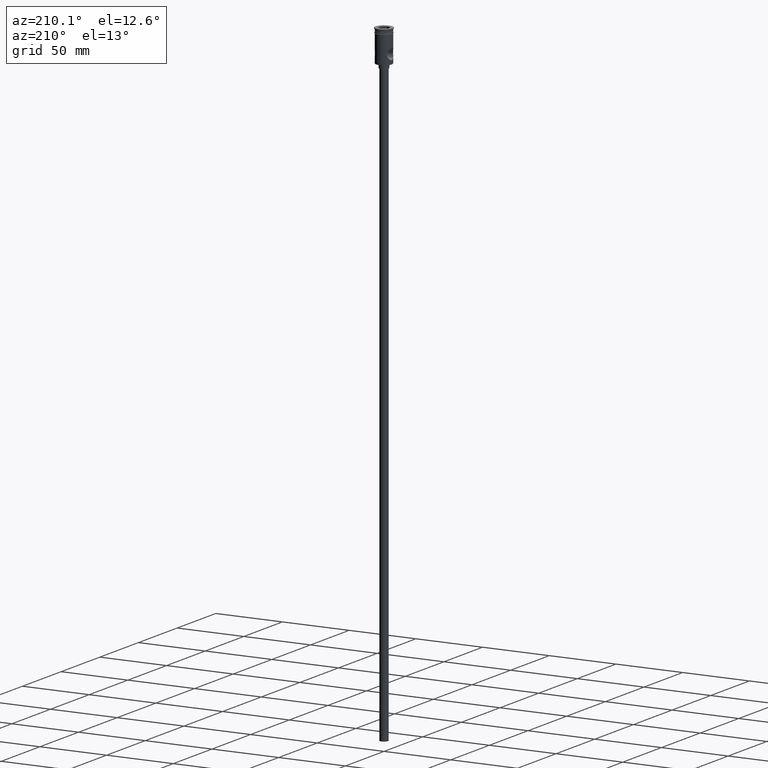
[diagram: clean part render]
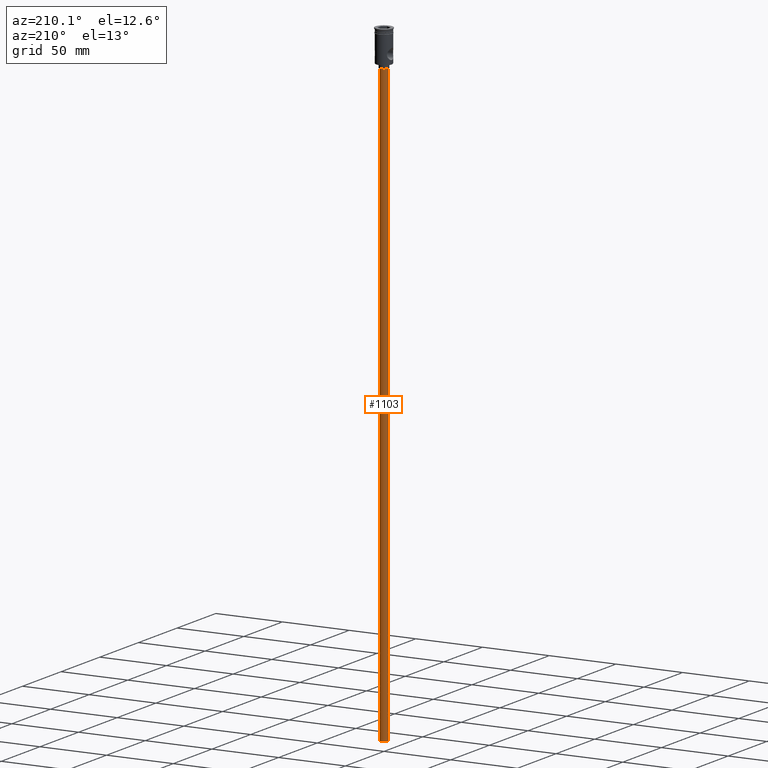
[diagram: same view with one face highlighted and labeled with its STEP entity id]
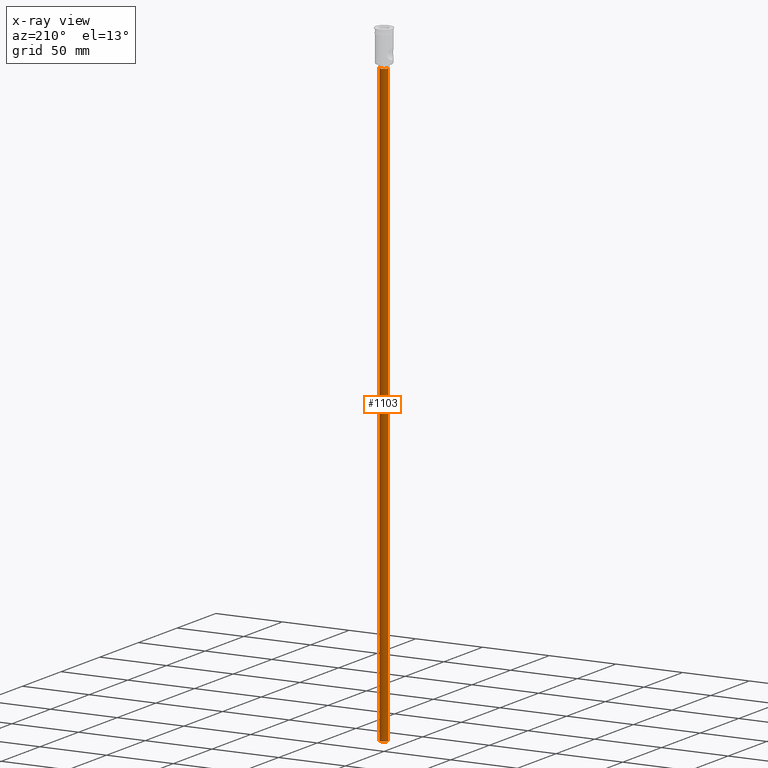
[diagram: x-ray of the same camera — body ghosted, the highlighted face saturated]
A machine part, auxiliary view. The second image highlights one B-rep face of the part: STEP entity #1103.
The next image is the same camera in x-ray: the body ghosted, the highlighted face saturated — about 0% of this face is hidden behind the body in this view.
In plain terms, the highlighted cylindrical surface (edge-blend (fillet) strip) has radius 3 mm, axis along (-0, -0, 1).
Its self-contained STEP definition (entity closure, byte-faithful):
#47 = VECTOR ( 'NONE', #1370, 1000.000000000000000 ) ;
#48 = AXIS2_PLACEMENT_3D ( 'NONE', #511, #936, #376 ) ;
#91 = CARTESIAN_POINT ( 'NONE',  ( 0.000000000000000000, 0.000000000000000000, -474.0000000000000568 ) ) ;
#132 = ORIENTED_EDGE ( 'NONE', *, *, #335, .F. ) ;
#175 = CARTESIAN_POINT ( 'NONE',  ( 3.000000000000000444, 0.000000000000000000, -474.0000000000000568 ) ) ;
#187 = VERTEX_POINT ( 'NONE', #175 ) ;
#257 = EDGE_CURVE ( 'NONE', #1290, #187, #950, .T. ) ;
#272 = CIRCLE ( 'NONE', #556, 3.000000000000000444 ) ;
#335 = EDGE_CURVE ( 'NONE', #187, #1150, #1384, .T. ) ;
#376 = DIRECTION ( 'NONE',  ( 1.000000000000000000, 0.000000000000000000, 0.000000000000000000 ) ) ;
#384 = CARTESIAN_POINT ( 'NONE',  ( -3.000000000000000444, 3.673940397442060361E-16, -27.00000000000000000 ) ) ;
#409 = ORIENTED_EDGE ( 'NONE', *, *, #612, .T. ) ;
#511 = CARTESIAN_POINT ( 'NONE',  ( 0.000000000000000000, 0.000000000000000000, -474.0000000000000568 ) ) ;
#556 = AXIS2_PLACEMENT_3D ( 'NONE', #686, #1128, #894 ) ;
#581 = EDGE_CURVE ( 'NONE', #976, #1150, #272, .T. ) ;
#595 = CARTESIAN_POINT ( 'NONE',  ( 3.000000000000000444, 0.000000000000000000, -474.0000000000000568 ) ) ;
#609 = FACE_OUTER_BOUND ( 'NONE', #1339, .T. ) ;
#612 = EDGE_CURVE ( 'NONE', #1290, #976, #1042, .T. ) ;
#676 = DIRECTION ( 'NONE',  ( -0.000000000000000000, -0.000000000000000000, 1.000000000000000000 ) ) ;
#686 = CARTESIAN_POINT ( 'NONE',  ( 0.000000000000000000, 0.000000000000000000, -27.00000000000000000 ) ) ;
#706 = VECTOR ( 'NONE', #676, 1000.000000000000000 ) ;
#755 = ORIENTED_EDGE ( 'NONE', *, *, #257, .F. ) ;
#803 = DIRECTION ( 'NONE',  ( -1.000000000000000000, 0.000000000000000000, 0.000000000000000000 ) ) ;
#818 = CARTESIAN_POINT ( 'NONE',  ( -3.000000000000000444, 3.673940397442060361E-16, -474.0000000000000568 ) ) ;
#894 = DIRECTION ( 'NONE',  ( -1.000000000000000000, 0.000000000000000000, 0.000000000000000000 ) ) ;
#936 = DIRECTION ( 'NONE',  ( -0.000000000000000000, -0.000000000000000000, 1.000000000000000000 ) ) ;
#950 = CIRCLE ( 'NONE', #1323, 3.000000000000000444 ) ;
#976 = VERTEX_POINT ( 'NONE', #384 ) ;
#1042 = LINE ( 'NONE', #818, #706 ) ;
#1043 = ORIENTED_EDGE ( 'NONE', *, *, #581, .T. ) ;
#1064 = CYLINDRICAL_SURFACE ( 'NONE', #48, 3.000000000000000444 ) ;
#1103 = ADVANCED_FACE ( 'NONE', ( #609 ), #1064, .T. ) ;
#1107 = CARTESIAN_POINT ( 'NONE',  ( -3.000000000000000444, 3.673940397442060361E-16, -474.0000000000000568 ) ) ;
#1128 = DIRECTION ( 'NONE',  ( 0.000000000000000000, 0.000000000000000000, -1.000000000000000000 ) ) ;
#1150 = VERTEX_POINT ( 'NONE', #1257 ) ;
#1231 = DIRECTION ( 'NONE',  ( 0.000000000000000000, 0.000000000000000000, -1.000000000000000000 ) ) ;
#1257 = CARTESIAN_POINT ( 'NONE',  ( 3.000000000000000444, 0.000000000000000000, -27.00000000000000000 ) ) ;
#1290 = VERTEX_POINT ( 'NONE', #1107 ) ;
#1323 = AXIS2_PLACEMENT_3D ( 'NONE', #91, #1231, #803 ) ;
#1339 = EDGE_LOOP ( 'NONE', ( #755, #409, #1043, #132 ) ) ;
#1370 = DIRECTION ( 'NONE',  ( -0.000000000000000000, -0.000000000000000000, 1.000000000000000000 ) ) ;
#1384 = LINE ( 'NONE', #595, #47 ) ;